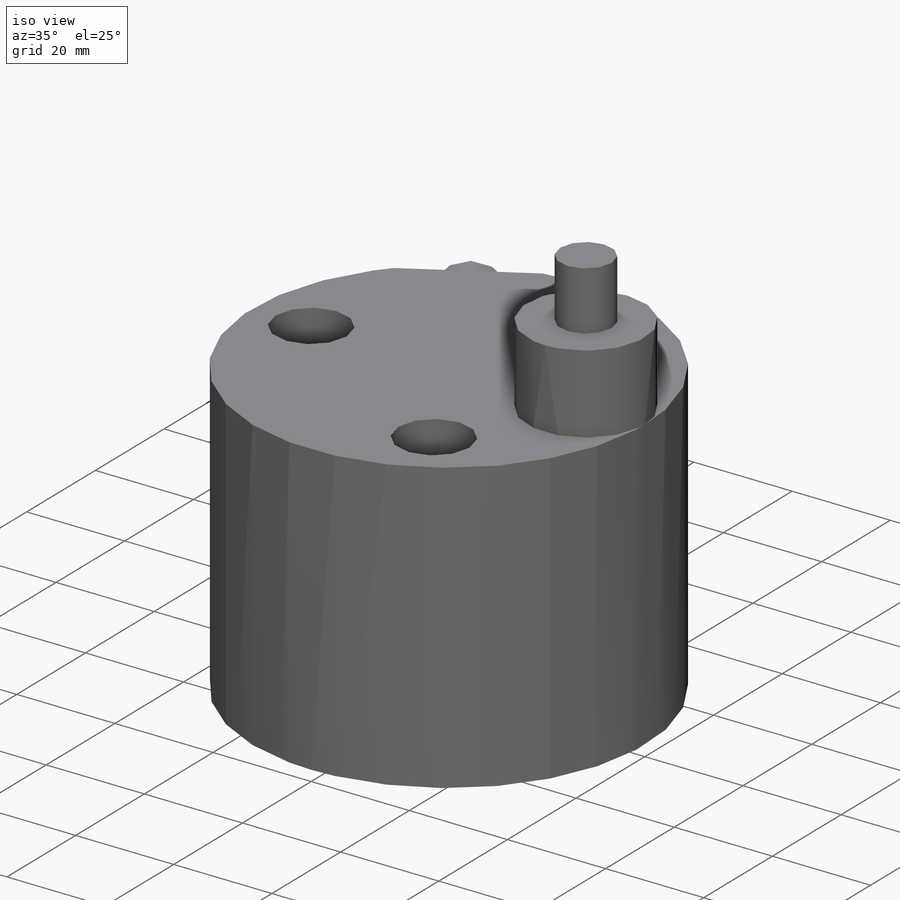
[diagram: iso view]
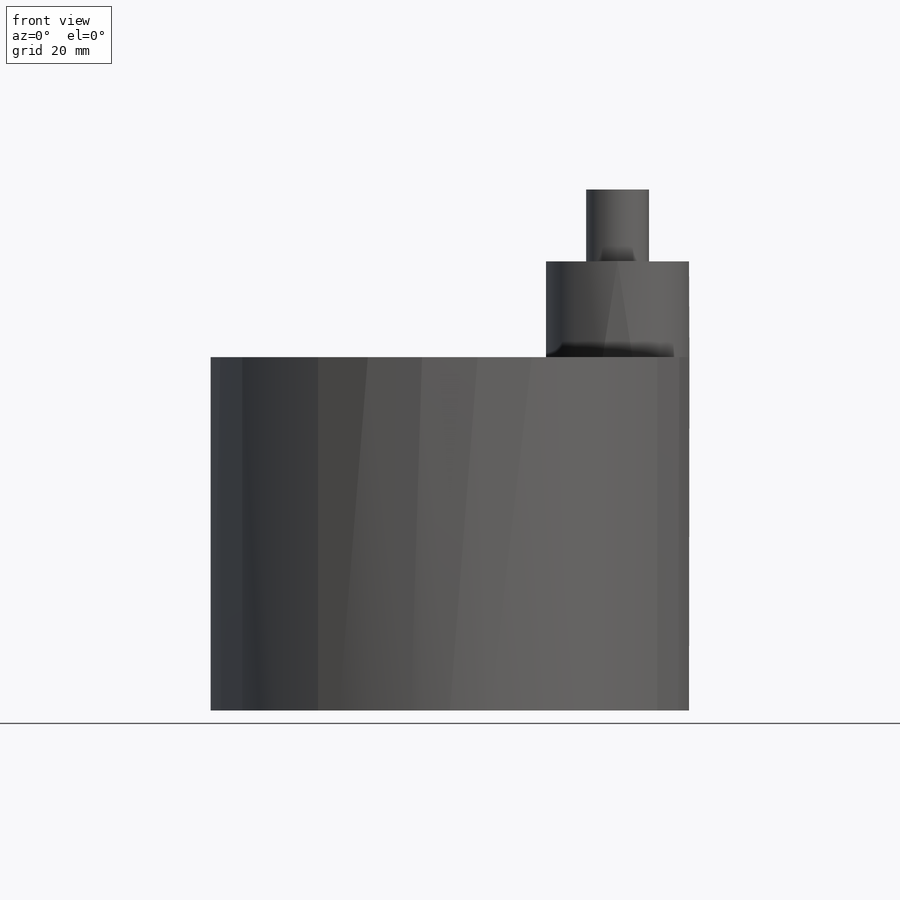
[diagram: front view]
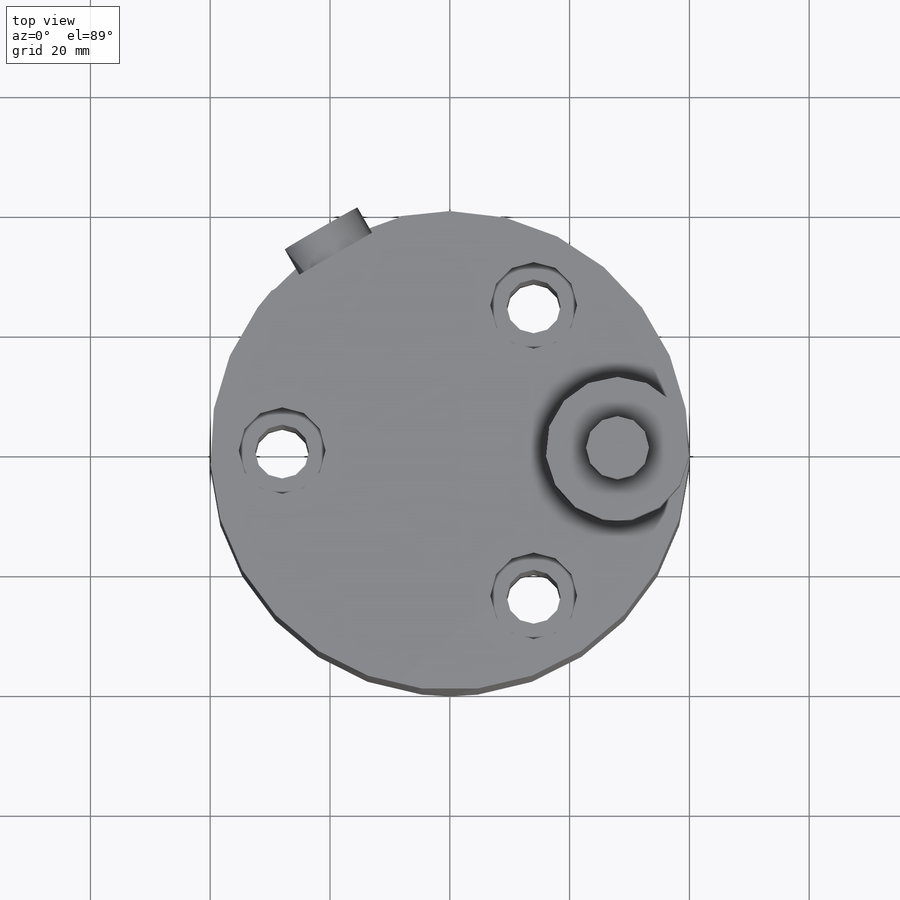
[diagram: top view]
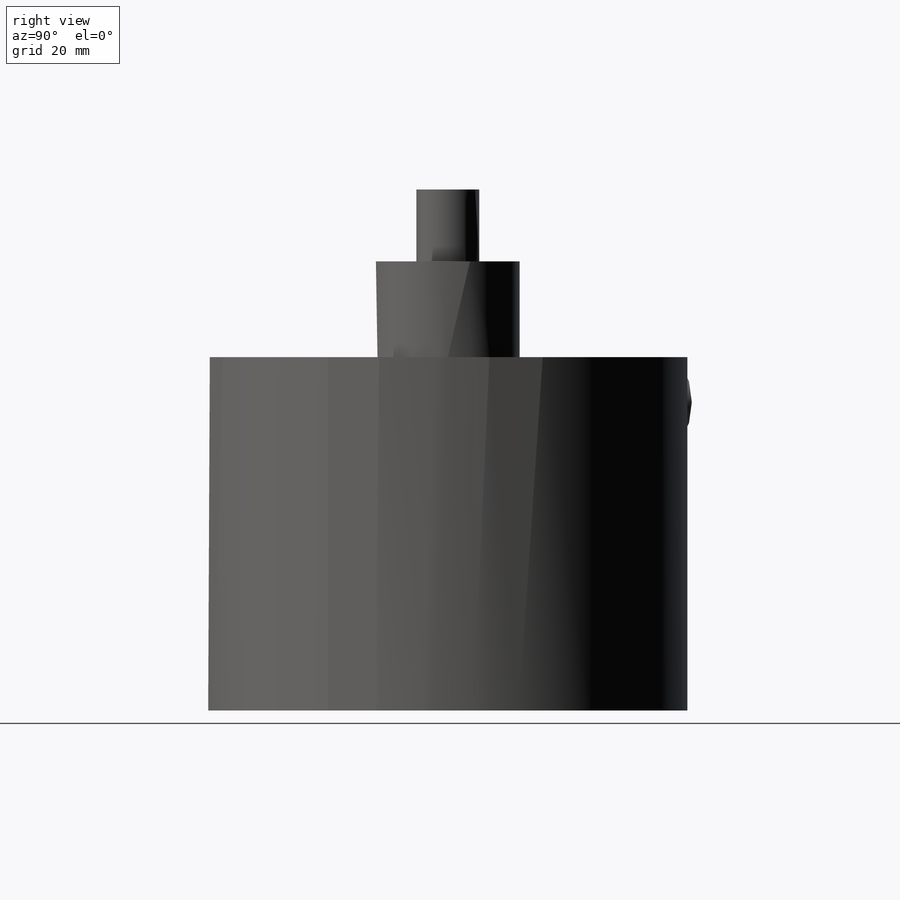
[diagram: right view]
SOLIDWORKS PART (.sldprt)
format: sldprt  version: not decoded by parser v0  size: 266,752 bytes
history: native  units: mm
features: sketch x13, cut_extrude x6, extrude x3, material x1, hole x1, pattern_circular x1, plane x1, cut_revolve x1, revolve x1 (+13 scaffold rows collapsed)
feature tree (41):
  scaffold x13  (default folders/planes/origin — collapsed)
  material  "Alloy Steel"
  sketch  "Sketch1"  dims[D1=80.0mm D2=62.0mm]
  extrude  "Extrude1"  Depth=59mm
  sketch  "Sketch11"  dims[D1=24.0mm D2=~31.097351mm]
  extrude  "Extrude2"  Depth=75mm
  sketch  "Sketch12"  dims[D1=10.5mm]
  extrude  "Extrude3"  Depth=12mm
  hole  "Hole1"  Diameter=9mm Depth=59.001mm
  sketch  "Sketch4"  dims[D1=90.0mm D2=40.0mm]
  sketch  "Sketch3"  dims[Diameter=9.0mm Depth=59.001mm C-Bore Diameter=14.5mm C-Bore Depth=9.0mm]
  pattern_circular  "CirPattern1"  Count=3 Angle=360deg
  sketch  "Sketch5"  dims[D1=8.0mm]
  cut_extrude  "Cut-Extrude1"  Depth=4mm
  sketch  "Sketch13"  dims[D3=8.0mm D1=14.0mm D2=28.0mm]
  cut_extrude  "Cut-Extrude5"  Depth=10mm
  sketch  "Sketch6"  dims[c1.D3=10.0mm c1.D1=35.0mm c1.D2=15.0mm c2.D1=28.0mm c2.D2=28.0mm c3.D2=30.0deg]
  cut_extrude  "Cut-Extrude2"  Depth=3mm
  sketch  "Sketch7"  dims[D1=4.0mm]
  cut_extrude  "Cut-Extrude3"  Depth=48.5mm
  plane  "Plane1"
  sketch  "Sketch14"  dims[D1=38.0mm]
  cut_extrude  "Cut-Extrude6"  Depth=15.5mm
  sketch  "Sketch8"  dims[c1.D1=40.0mm c1.D2=2.5mm c1.D3=20.0mm c1.D4=8.566mm c1.D5=24.0mm c1.D6=~3.836843mm c2.D6=30.0deg c2.D7=13.157mm c2.D1=51.5mm c2.D2=15.0mm]
  cut_revolve  "Cut-Revolve1"  Angle=360deg
  sketch  "Sketch9"  dims[c1.D1=~4.740177mm c2.D1=45.0deg c2.D2=3.864mm c2.D3=7.0mm c2.D4=5.0mm c2.D5=14.0mm]
  revolve  "Revolve2"  Angle=360deg
  sketch  "Sketch10"  dims[D1=5.0mm]
  cut_extrude  "Cut-Extrude4"  Depth=5mm
decode coverage: 26 of 26 modeling features carry decoded parameters
note: ~ marks probable driven/reference dimensions
note: suppression state not decoded; provenance and decode notes live in map.json
